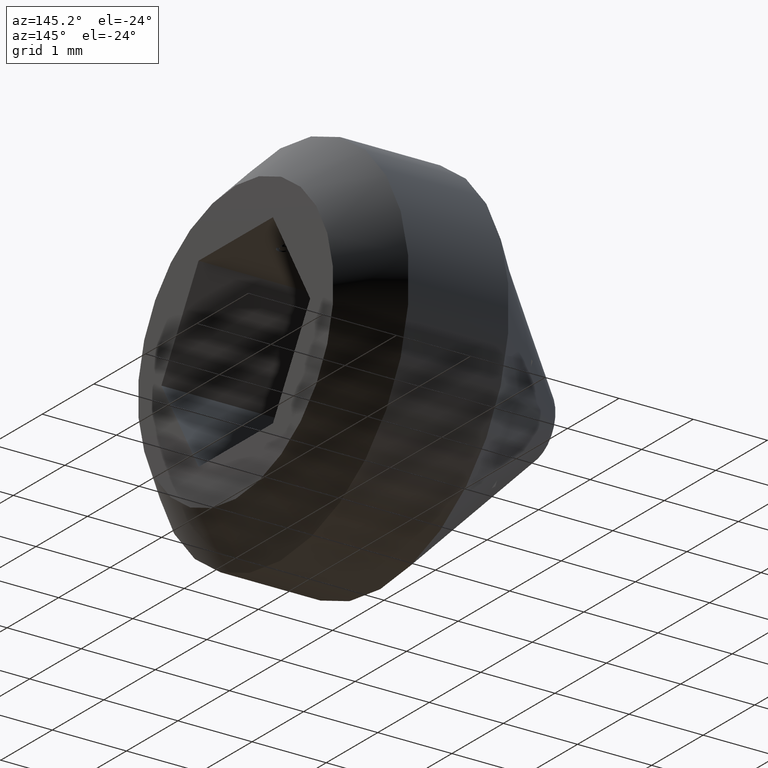
[diagram: clean part render]
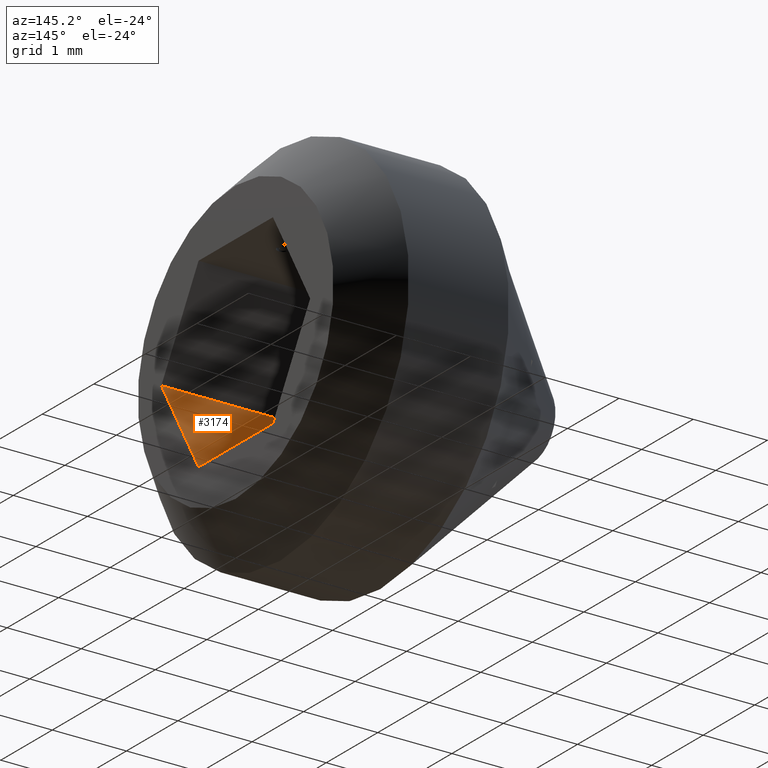
[diagram: same view with one face highlighted and labeled with its STEP entity id]
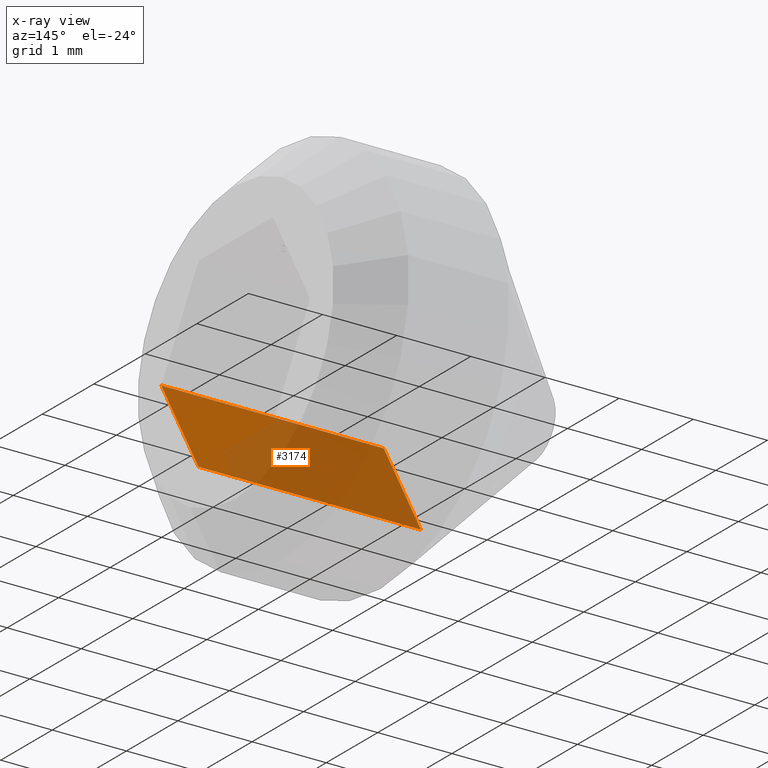
[diagram: x-ray of the same camera — body ghosted, the highlighted face saturated]
A machine part, auxiliary view. The second image highlights one B-rep face of the part: STEP entity #3174.
The next image is the same camera in x-ray: the body ghosted, the highlighted face saturated — about 71% of this face is hidden behind the body in this view.
In plain terms, the highlighted planar face has unit normal (0, -0.866, -0.5).
Its self-contained STEP definition (entity closure, byte-faithful):
#287 = ORIENTED_EDGE ( 'NONE', *, *, #4355, .T. ) ;
#801 = CARTESIAN_POINT ( 'NONE',  ( 4.000000000000000000, -0.7216878364870328300, -1.249999999999999800 ) ) ;
#941 = PLANE ( 'NONE',  #3156 ) ;
#971 = VECTOR ( 'NONE', #3240, 1000.000000000000000 ) ;
#1021 = CARTESIAN_POINT ( 'NONE',  ( 1.000000000000000000, -1.443375672974064300, 2.535389781714670200E-016 ) ) ;
#1180 = VERTEX_POINT ( 'NONE', #801 ) ;
#1535 = VERTEX_POINT ( 'NONE', #9177 ) ;
#1716 = DIRECTION ( 'NONE',  ( 0.0000000000000000000, 0.4999999999999995600, -0.8660254037844388200 ) ) ;
#1748 = DIRECTION ( 'NONE',  ( 3.061515884555941300E-017, -0.8660254037844389300, -0.4999999999999996100 ) ) ;
#1783 = DIRECTION ( 'NONE',  ( 1.000000000000000000, -0.0000000000000000000, 6.123031769111886300E-017 ) ) ;
#2025 = VECTOR ( 'NONE', #6857, 1000.000000000000000 ) ;
#2663 = VERTEX_POINT ( 'NONE', #4701 ) ;
#3156 = AXIS2_PLACEMENT_3D ( 'NONE', #1021, #1748, #1716 ) ;
#3174 = ADVANCED_FACE ( 'NONE', ( #9470 ), #941, .F. ) ;
#3240 = DIRECTION ( 'NONE',  ( 0.0000000000000000000, 0.4999999999999995600, -0.8660254037844389300 ) ) ;
#3320 = LINE ( 'NONE', #4070, #2025 ) ;
#3415 = CARTESIAN_POINT ( 'NONE',  ( 1.000000000000000000, -0.7216878364870328300, -1.250000000000000000 ) ) ;
#4070 = CARTESIAN_POINT ( 'NONE',  ( 1.000000000000000000, -1.443375672974064300, 2.535389781714670200E-016 ) ) ;
#4225 = LINE ( 'NONE', #3415, #6959 ) ;
#4355 = EDGE_CURVE ( 'NONE', #2663, #10409, #4390, .T. ) ;
#4381 = CARTESIAN_POINT ( 'NONE',  ( 4.000000000000000000, -1.443375672974064300, 4.336808689942017700E-016 ) ) ;
#4390 = LINE ( 'NONE', #6371, #6082 ) ;
#4537 = ORIENTED_EDGE ( 'NONE', *, *, #5287, .T. ) ;
#4701 = CARTESIAN_POINT ( 'NONE',  ( 1.000000000000000000, -1.443375672974064300, 2.535389781714670200E-016 ) ) ;
#4987 = DIRECTION ( 'NONE',  ( 1.000000000000000000, -0.0000000000000000000, 6.123031769111886300E-017 ) ) ;
#5287 = EDGE_CURVE ( 'NONE', #10409, #1180, #5310, .T. ) ;
#5310 = LINE ( 'NONE', #8884, #971 ) ;
#6082 = VECTOR ( 'NONE', #4987, 1000.000000000000000 ) ;
#6371 = CARTESIAN_POINT ( 'NONE',  ( 1.000000000000000000, -1.443375672974064300, 2.535389781714670200E-016 ) ) ;
#6505 = EDGE_CURVE ( 'NONE', #1535, #1180, #4225, .T. ) ;
#6857 = DIRECTION ( 'NONE',  ( 0.0000000000000000000, 0.4999999999999995600, -0.8660254037844389300 ) ) ;
#6959 = VECTOR ( 'NONE', #1783, 1000.000000000000000 ) ;
#7463 = EDGE_LOOP ( 'NONE', ( #4537, #8931, #9751, #287 ) ) ;
#8463 = EDGE_CURVE ( 'NONE', #2663, #1535, #3320, .T. ) ;
#8884 = CARTESIAN_POINT ( 'NONE',  ( 4.000000000000000000, -1.443375672974064300, 4.372299312448236600E-016 ) ) ;
#8931 = ORIENTED_EDGE ( 'NONE', *, *, #6505, .F. ) ;
#9177 = CARTESIAN_POINT ( 'NONE',  ( 1.000000000000000000, -0.7216878364870328300, -1.250000000000000000 ) ) ;
#9470 = FACE_OUTER_BOUND ( 'NONE', #7463, .T. ) ;
#9751 = ORIENTED_EDGE ( 'NONE', *, *, #8463, .F. ) ;
#10409 = VERTEX_POINT ( 'NONE', #4381 ) ;